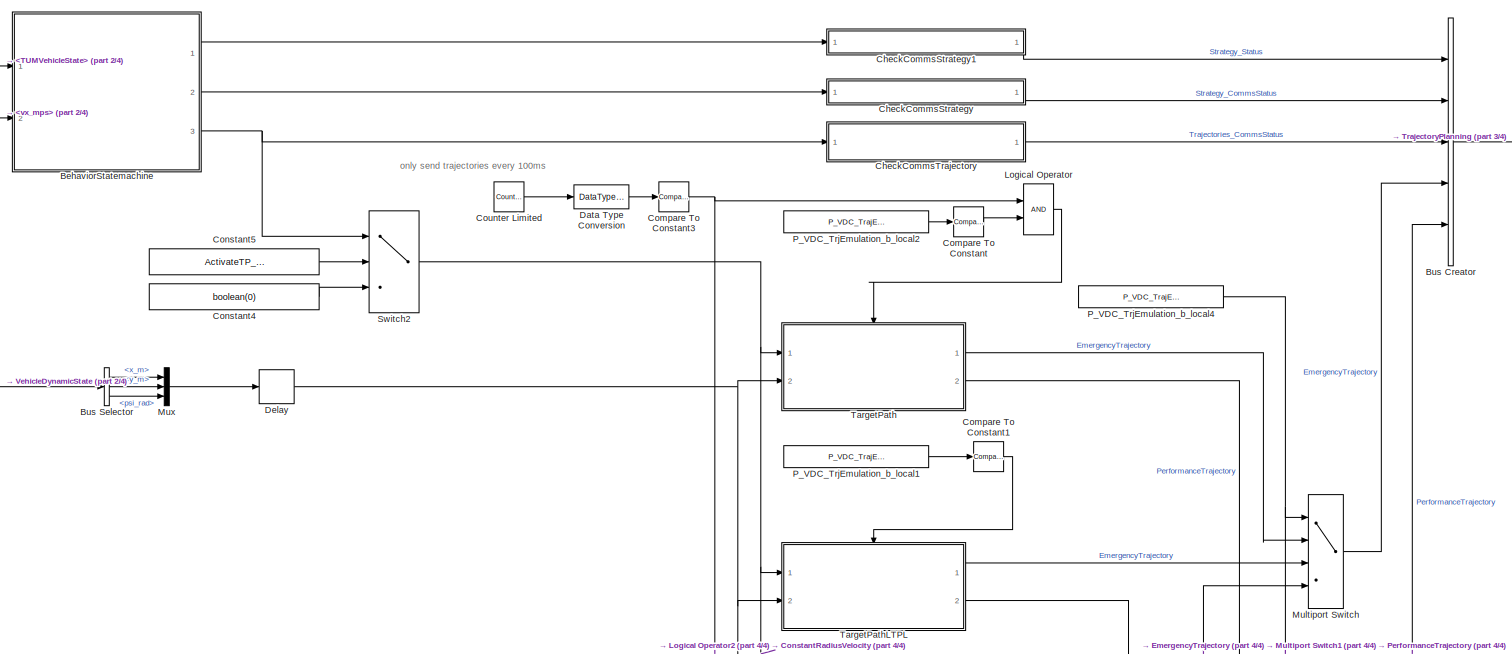
[diagram: root canvas - part 1/4, full width, middle band]
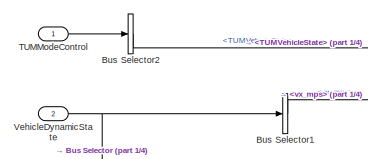
[diagram: root canvas - part 2/4, top left region]
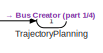
[diagram: root canvas - part 3/4, top right region]
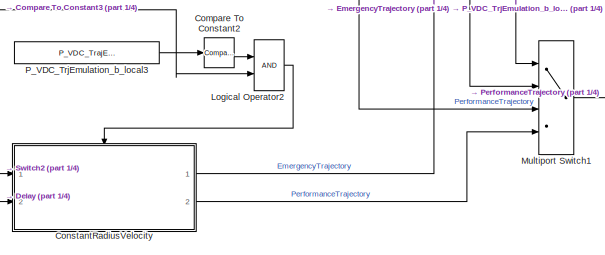
[diagram: root canvas - part 4/4, bottom right region]
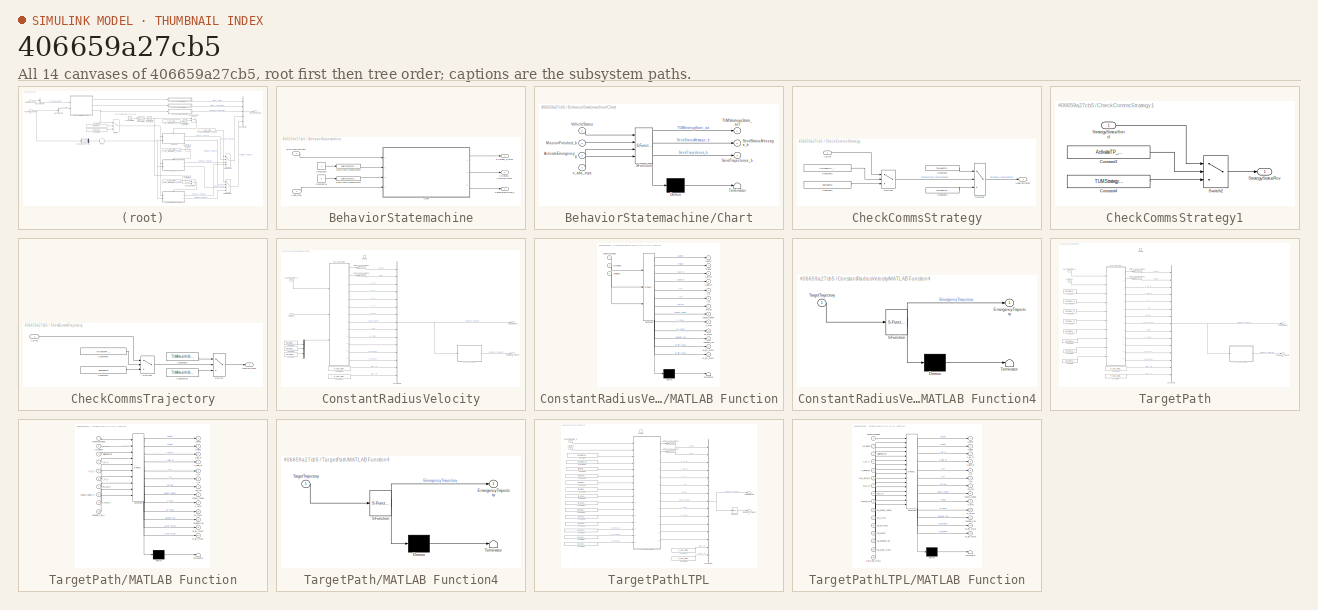
[diagram: thumbnail index - all 14 canvases of the model, root first then tree order]
MODEL slx_406659a27cb5
KIND model
BLOCK [SubSystem] BehaviorStatemachine
  Ports = [2, 3]
  RequestExecContextInheritance = off
  SystemSampleTime = tS
  TreatAsAtomicUnit = on
BLOCK [SubSystem] BehaviorStatemachine/Chart
  ErrorFcn = Stateflow.Translate.translate
  PermitHierarchicalResolution = ExplicitOnly
  Ports = [4, 3]
  RequestExecContextInheritance = off
  SFBlockType = Chart
  TreatAsAtomicUnit = on
BLOCK [Demux] BehaviorStatemachine/Chart/ Demux 
  Outputs = 1
  Ports = [1, 1]
BLOCK [S-Function] BehaviorStatemachine/Chart/ SFunction 
  EnableBusSupport = on
  FunctionName = sf_sfun
  Parameters = P_PX2_EnterIdle_mps
  PortCounts = [4 4]
  Ports = [4, 4]
  SFcnIsStateOwnerBlock = off
  SFunctionDeploymentMode = off
  Tag = Stateflow S-Function TrajectoryPlanningEmulation 3
BLOCK [Terminator] BehaviorStatemachine/Chart/ Terminator 
BLOCK [Inport] BehaviorStatemachine/Chart/ActivateEmergency_b
  IconDisplay = Port number
  Port = 3
BLOCK [Inport] BehaviorStatemachine/Chart/MissionFinished_b
  IconDisplay = Port number
  Port = 2
BLOCK [Outport] BehaviorStatemachine/Chart/SendStatusMessage_b
  IconDisplay = Port number
  Port = 2
BLOCK [Outport] BehaviorStatemachine/Chart/SendTrajectories_b
  IconDisplay = Port number
  Port = 3
BLOCK [Outport] BehaviorStatemachine/Chart/TUMStrategyState_act
  IconDisplay = Port number
BLOCK [Inport] BehaviorStatemachine/Chart/VehicleStatus
  IconDisplay = Port number
BLOCK [Inport] BehaviorStatemachine/Chart/v_abs_mps
  IconDisplay = Port number
  Port = 4
BLOCK [Constant] BehaviorStatemachine/Constant10
  Value = 0
BLOCK [Constant] BehaviorStatemachine/Constant9
  Value = 0
BLOCK [DataTypeConversion] BehaviorStatemachine/Data Type Conversion12
  OutDataTypeStr = boolean
  RndMeth = Floor
  SaturateOnIntegerOverflow = off
BLOCK [DataTypeConversion] BehaviorStatemachine/Data Type Conversion13
  OutDataTypeStr = boolean
  RndMeth = Floor
  SaturateOnIntegerOverflow = off
BLOCK [Outport] BehaviorStatemachine/SendTrajectories_b
  IconDisplay = Port number
  Port = 3
BLOCK [Outport] BehaviorStatemachine/Strategy_CommsStatus
  IconDisplay = Port number
  Port = 2
BLOCK [Outport] BehaviorStatemachine/Strategy_Status
  IconDisplay = Port number
BLOCK [Inport] BehaviorStatemachine/TUMVehicleState
  IconDisplay = Port number
  OutDataTypeStr = Enum: TUMVehicleState
BLOCK [Inport] BehaviorStatemachine/v_abs_mps
  IconDisplay = Port number
  Port = 2
BLOCK [BusCreator] Bus Creator
  DisplayOption = bar
  InheritFromInputs = on
  Inputs = 5
  Ports = [5, 1]
BLOCK [BusSelector] Bus Selector
  OutputAsBus = off
  OutputSignals = Pos.x_m,Pos.y_m,Pos.psi_rad
  Ports = [1, 3]
BLOCK [BusSelector] Bus Selector1
  OutputAsBus = off
  OutputSignals = vx_mps
  Ports = [1, 1]
BLOCK [BusSelector] Bus Selector2
  OutputAsBus = off
  OutputSignals = TUMVehicleState
  Ports = [1, 1]
BLOCK [SubSystem] CheckCommsStrategy
  Ports = [1, 1]
  RequestExecContextInheritance = off
BLOCK [Inport] CheckCommsStrategy/Active
  IconDisplay = Port number
BLOCK [Constant] CheckCommsStrategy/Constant1
  OutDataTypeStr = Enum: TUMHealthStatus
  Value = TUMHealthStatus.ERROR
BLOCK [Constant] CheckCommsStrategy/Constant2
  OutDataTypeStr = Enum: TUMHealthStatus
  Value = TUMHealthStatus.OK
BLOCK [Constant] CheckCommsStrategy/Constant3
  Value = ActivateTP_PX2
BLOCK [Constant] CheckCommsStrategy/Constant4
  Value = boolean(0)
BLOCK [Outport] CheckCommsStrategy/HealthStatus
  IconDisplay = Port number
BLOCK [Switch] CheckCommsStrategy/Switch1
  Criteria = u2 > Threshold
  InputSameDT = off
  SaturateOnIntegerOverflow = off
BLOCK [Switch] CheckCommsStrategy/Switch2
  Criteria = u2 > Threshold
  InputSameDT = off
  SaturateOnIntegerOverflow = off
BLOCK [SubSystem] CheckCommsStrategy1
  Ports = [1, 1]
  RequestExecContextInheritance = off
BLOCK [Constant] CheckCommsStrategy1/Constant3
  Value = ActivateTP_PX2
BLOCK [Constant] CheckCommsStrategy1/Constant4
  Value = TUMStrategyState.S_OFF
BLOCK [Outport] CheckCommsStrategy1/StrategyStatusRcv
  IconDisplay = Port number
BLOCK [Inport] CheckCommsStrategy1/StrategyStatusSend
  IconDisplay = Port number
BLOCK [Switch] CheckCommsStrategy1/Switch2
  Criteria = u2 > Threshold
  InputSameDT = off
  SaturateOnIntegerOverflow = off
BLOCK [SubSystem] CheckCommsTrajectory
  Ports = [1, 1]
  RequestExecContextInheritance = off
BLOCK [Inport] CheckCommsTrajectory/Active
  IconDisplay = Port number
BLOCK [Constant] CheckCommsTrajectory/Constant1
  Value = boolean(0)
BLOCK [Constant] CheckCommsTrajectory/Constant10
  OutDataTypeStr = Enum: TUMHealthStatus
  Value = TUMHealthStatus.ERROR
BLOCK [Constant] CheckCommsTrajectory/Constant2
  Value = ActivateTP_PX2
BLOCK [Constant] CheckCommsTrajectory/Constant3
  OutDataTypeStr = Enum: TUMHealthStatus
  Value = TUMHealthStatus.OK
BLOCK [Outport] CheckCommsTrajectory/HealthStatus
  IconDisplay = Port number
BLOCK [Switch] CheckCommsTrajectory/Switch
  Criteria = u2 > Threshold
  InputSameDT = off
  SaturateOnIntegerOverflow = off
BLOCK [Switch] CheckCommsTrajectory/Switch2
  Criteria = u2 > Threshold
  InputSameDT = off
  SaturateOnIntegerOverflow = off
BLOCK [Reference] Compare To Constant  REF=simulink/Logic and Bit
Operations/Compare
To Constant
  Ports = [1, 1]
  SourceBlock = simulink/Logic and Bit\nOperations/Compare\nTo Constant
  SourceProductBaseCode = SL
  SourceProductName = Simulink
  SourceType = Compare To Constant
BLOCK [Reference] Compare To Constant1  REF=simulink/Logic and Bit
Operations/Compare
To Constant
  Ports = [1, 1]
  SourceBlock = simulink/Logic and Bit\nOperations/Compare\nTo Constant
  SourceProductBaseCode = SL
  SourceProductName = Simulink
  SourceType = Compare To Constant
BLOCK [Reference] Compare To Constant2  REF=simulink/Logic and Bit
Operations/Compare
To Constant
  Ports = [1, 1]
  SourceBlock = simulink/Logic and Bit\nOperations/Compare\nTo Constant
  SourceProductBaseCode = SL
  SourceProductName = Simulink
  SourceType = Compare To Constant
BLOCK [Reference] Compare To Constant3  REF=simulink/Logic and Bit
Operations/Compare
To Constant
  Ports = [1, 1]
  SourceBlock = simulink/Logic and Bit\nOperations/Compare\nTo Constant
  SourceProductBaseCode = SL
  SourceProductName = Simulink
  SourceType = Compare To Constant
BLOCK [Constant] Constant4
  Value = boolean(0)
BLOCK [Constant] Constant5
  Value = ActivateTP_PX2
BLOCK [SubSystem] ConstantRadiusVelocity
  Ports = [2, 2, 1]
  RequestExecContextInheritance = off
  TreatAsAtomicUnit = on
BLOCK [Inport] ConstantRadiusVelocity/ActualPos
  IconDisplay = Port number
  Port = 2
  PortDimensions = 3
BLOCK [BusCreator] ConstantRadiusVelocity/Bus Creator2
  DisplayOption = bar
  InheritFromInputs = off
  Inputs = 15
  OutDataTypeStr = Bus: Trajectory
  Ports = [15, 1]
BLOCK [Constant] ConstantRadiusVelocity/Constant1
  Value = Raceline.x_m(1)
BLOCK [Constant] ConstantRadiusVelocity/Constant12
  Value = P_VDC_SafetyDistance_m*ones(50, 1)
  VectorParams1D = off
BLOCK [Constant] ConstantRadiusVelocity/Constant17
  Value = P_VDC_SafetyDistance_m*ones(50, 1)
  VectorParams1D = off
BLOCK [Constant] ConstantRadiusVelocity/Constant2
  Value = Raceline.y_m(1)
BLOCK [Constant] ConstantRadiusVelocity/Constant3
  Value = Raceline.psi_rad(1)
BLOCK [DataTypeConversion] ConstantRadiusVelocity/Data Type Conversion1
  OutDataTypeStr = uint32
  RndMeth = Floor
  SaturateOnIntegerOverflow = off
BLOCK [DataTypeConversion] ConstantRadiusVelocity/Data Type Conversion2
  OutDataTypeStr = uint32
  RndMeth = Floor
  SaturateOnIntegerOverflow = off
BLOCK [Outport] ConstantRadiusVelocity/EmergencyTrajectory
  IconDisplay = Port number
  OutDataTypeStr = Bus: Trajectory
BLOCK [EnablePort] ConstantRadiusVelocity/Enable
  Ports = []
BLOCK [SubSystem] ConstantRadiusVelocity/MATLAB Function
  ErrorFcn = Stateflow.Translate.translate
  PermitHierarchicalResolution = ExplicitOnly
  Ports = [3, 13]
  RequestExecContextInheritance = off
  SFBlockType = MATLAB Function
  TreatAsAtomicUnit = on
BLOCK [Demux] ConstantRadiusVelocity/MATLAB Function/ Demux 
  Outputs = 1
  Ports = [1, 1]
BLOCK [S-Function] ConstantRadiusVelocity/MATLAB Function/ SFunction 
  EnableBusSupport = on
  FunctionName = sf_sfun
  Parameters = P_VDC_AccLimits_ax_mps2,P_VDC_AccLimits_ay_mps2,P_VDC_AccLimits_v_mps
  PortCounts = [3 14]
  Ports = [3, 14]
  SFcnIsStateOwnerBlock = off
  SFunctionDeploymentMode = off
  Tag = Stateflow S-Function TrajectoryPlanningEmulation 4
BLOCK [Terminator] ConstantRadiusVelocity/MATLAB Function/ Terminator 
BLOCK [Inport] ConstantRadiusVelocity/MATLAB Function/ActualPos
  IconDisplay = Port number
  Port = 2
BLOCK [Inport] ConstantRadiusVelocity/MATLAB Function/InitialPos
  IconDisplay = Port number
  Port = 3
BLOCK [Outport] ConstantRadiusVelocity/MATLAB Function/LapCnt
  IconDisplay = Port number
BLOCK [Outport] ConstantRadiusVelocity/MATLAB Function/Psi_rad
  IconDisplay = Port number
  Port = 7
BLOCK [Outport] ConstantRadiusVelocity/MATLAB Function/TrajCnt
  IconDisplay = Port number
  Port = 2
BLOCK [Outport] ConstantRadiusVelocity/MATLAB Function/ax_lim_mps2
  IconDisplay = Port number
  Port = 12
BLOCK [Outport] ConstantRadiusVelocity/MATLAB Function/ax_mps2
  IconDisplay = Port number
  Port = 10
BLOCK [Outport] ConstantRadiusVelocity/MATLAB Function/ay_lim_mps2
  IconDisplay = Port number
  Port = 13
BLOCK [Outport] ConstantRadiusVelocity/MATLAB Function/banking_rad
  IconDisplay = Port number
  Port = 11
BLOCK [Outport] ConstantRadiusVelocity/MATLAB Function/kappa_radpm
  IconDisplay = Port number
  Port = 8
BLOCK [Outport] ConstantRadiusVelocity/MATLAB Function/s_glob_m
  IconDisplay = Port number
  Port = 4
BLOCK [Outport] ConstantRadiusVelocity/MATLAB Function/s_loc_m
  IconDisplay = Port number
  Port = 3
BLOCK [Inport] ConstantRadiusVelocity/MATLAB Function/sendMessages
  IconDisplay = Port number
BLOCK [Outport] ConstantRadiusVelocity/MATLAB Function/v_mps
  IconDisplay = Port number
  Port = 9
BLOCK [Outport] ConstantRadiusVelocity/MATLAB Function/x_m
  IconDisplay = Port number
  Port = 5
BLOCK [Outport] ConstantRadiusVelocity/MATLAB Function/y_m
  IconDisplay = Port number
  Port = 6
BLOCK [SubSystem] ConstantRadiusVelocity/MATLAB Function4
  ErrorFcn = Stateflow.Translate.translate
  PermitHierarchicalResolution = ExplicitOnly
  Ports = [1, 1]
  RequestExecContextInheritance = off
  SFBlockType = MATLAB Function
  TreatAsAtomicUnit = on
BLOCK [Demux] ConstantRadiusVelocity/MATLAB Function4/ Demux 
  Outputs = 1
  Ports = [1, 1]
BLOCK [S-Function] ConstantRadiusVelocity/MATLAB Function4/ SFunction 
  EnableBusSupport = on
  FunctionName = sf_sfun
  Parameters = P_VDC_AccLimits_ax_mps2,P_VDC_AccLimits_ay_mps2,P_VDC_AccLimits_v_mps,drag_coefficient,roh_air,vehiclemass_kg
  PortCounts = [1 2]
  Ports = [1, 2]
  SFcnIsStateOwnerBlock = off
  SFunctionDeploymentMode = off
  Tag = Stateflow S-Function TrajectoryPlanningEmulation 5
BLOCK [Terminator] ConstantRadiusVelocity/MATLAB Function4/ Terminator 
BLOCK [Outport] ConstantRadiusVelocity/MATLAB Function4/EmergencyTrajectory
  IconDisplay = Port number
BLOCK [Inport] ConstantRadiusVelocity/MATLAB Function4/TargetTrajectory
  IconDisplay = Port number
BLOCK [Mux] ConstantRadiusVelocity/Mux
  DisplayOption = bar
  Inputs = 3
  Ports = [3, 1]
BLOCK [Outport] ConstantRadiusVelocity/TargetTrajectory
  IconDisplay = Port number
  OutDataTypeStr = Bus: Trajectory
  Port = 2
BLOCK [Inport] ConstantRadiusVelocity/sendTrajectories_b
  IconDisplay = Port number
BLOCK [Reference] Counter Limited  REF=simulink/Sources/Counter
Limited
  Ports = [0, 1]
  SourceBlock = simulink/Sources/Counter\nLimited
  SourceProductBaseCode = SL
  SourceProductName = Simulink
  SourceType = Counter Limited
BLOCK [DataTypeConversion] Data Type Conversion
  RndMeth = Floor
  SaturateOnIntegerOverflow = off
BLOCK [Delay] Delay
  DelayLength = 1
  InputPortMap = u0
  Ports = [1, 1]
BLOCK [Logic] Logical Operator
  AllPortsSameDT = off
  OutDataTypeStr = boolean
  Ports = [2, 1]
BLOCK [Logic] Logical Operator2
  AllPortsSameDT = off
  OutDataTypeStr = boolean
  Ports = [2, 1]
BLOCK [MultiPortSwitch] Multiport Switch
  DataPortOrder = Zero-based contiguous
  InputSameDT = off
  Ports = [4, 1]
  SaturateOnIntegerOverflow = off
  zeroidx = on
BLOCK [MultiPortSwitch] Multiport Switch1
  DataPortOrder = Zero-based contiguous
  InputSameDT = off
  Ports = [4, 1]
  SaturateOnIntegerOverflow = off
  zeroidx = on
BLOCK [Mux] Mux
  DisplayOption = bar
  Inputs = 3
  Ports = [3, 1]
BLOCK [Constant] P_VDC_TrjEmulation_b_local1
  Value = P_VDC_TrajEmulation_mode
BLOCK [Constant] P_VDC_TrjEmulation_b_local2
  Value = P_VDC_TrajEmulation_mode
BLOCK [Constant] P_VDC_TrjEmulation_b_local3
  Value = P_VDC_TrajEmulation_mode
BLOCK [Constant] P_VDC_TrjEmulation_b_local4
  Value = P_VDC_TrajEmulation_mode
BLOCK [Switch] Switch2
  Criteria = u2 > Threshold
  InputSameDT = off
  SaturateOnIntegerOverflow = off
BLOCK [Inport] TUMModeControl
  IconDisplay = Port number
  OutDataTypeStr = Bus: TUMModeControl
  SampleTime = tS
BLOCK [SubSystem] TargetPath
  Ports = [2, 2, 1]
  RequestExecContextInheritance = off
  TreatAsAtomicUnit = on
BLOCK [Inport] TargetPath/ActualPos
  IconDisplay = Port number
  Port = 2
  PortDimensions = 3
BLOCK [BusCreator] TargetPath/Bus Creator2
  DisplayOption = bar
  InheritFromInputs = off
  Inputs = 15
  OutDataTypeStr = Bus: Trajectory
  Ports = [15, 1]
BLOCK [Constant] TargetPath/Constant1
  Value = Raceline.x_m
BLOCK [Constant] TargetPath/Constant11
  Value = Raceline.vx_mps
BLOCK [Constant] TargetPath/Constant12
  Value = P_VDC_SafetyDistance_m*ones(50, 1)
  VectorParams1D = off
BLOCK [Constant] TargetPath/Constant17
  Value = P_VDC_SafetyDistance_m*ones(50, 1)
  VectorParams1D = off
BLOCK [Constant] TargetPath/Constant19
  Value = Raceline.s_m
BLOCK [Constant] TargetPath/Constant2
  Value = Raceline.y_m
BLOCK [Constant] TargetPath/Constant3
  Value = Raceline.psi_rad
BLOCK [Constant] TargetPath/Constant4
  Value = Raceline.kappa_radpm
BLOCK [Constant] TargetPath/Constant6
  Value = Raceline.banking_rad
  VectorParams1D = off
BLOCK [Constant] TargetPath/Constant7
  Value = Raceline.ValidPointCnt
BLOCK [DataTypeConversion] TargetPath/Data Type Conversion1
  OutDataTypeStr = uint32
  RndMeth = Floor
  SaturateOnIntegerOverflow = off
BLOCK [DataTypeConversion] TargetPath/Data Type Conversion2
  OutDataTypeStr = uint32
  RndMeth = Floor
  SaturateOnIntegerOverflow = off
BLOCK [Outport] TargetPath/EmergencyTrajectory
  IconDisplay = Port number
  OutDataTypeStr = Bus: Trajectory
BLOCK [EnablePort] TargetPath/Enable
  Ports = []
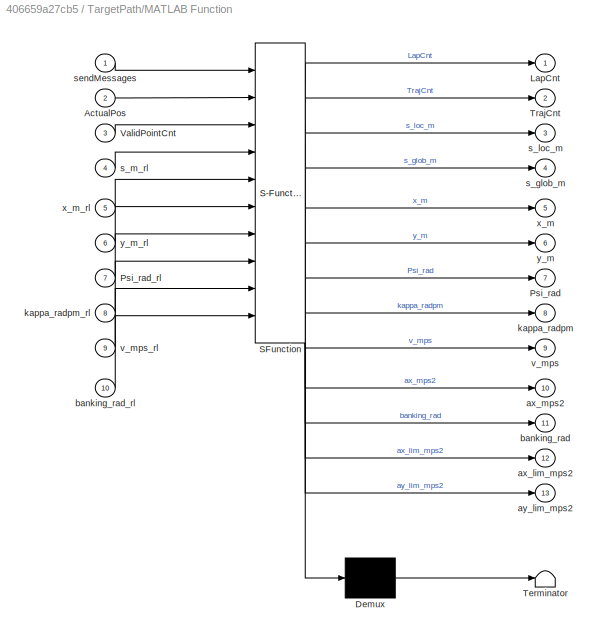
BLOCK [SubSystem] TargetPath/MATLAB Function
  ErrorFcn = Stateflow.Translate.translate
  PermitHierarchicalResolution = ExplicitOnly
  Ports = [10, 13]
  RequestExecContextInheritance = off
  SFBlockType = MATLAB Function
BLOCK [Demux] TargetPath/MATLAB Function/ Demux 
  Outputs = 1
  Ports = [1, 1]
BLOCK [S-Function] TargetPath/MATLAB Function/ SFunction 
  EnableBusSupport = on
  FunctionName = sf_sfun
  Parameters = P_TP_dist_foresight_perf_s,P_VDC_AccLimits_ax_mps2,P_VDC_AccLimits_ay_mps2,P_VDC_AccLimits_v_mps,P_VDC_VirtualScaleFactor
  PortCounts = [10 14]
  Ports = [10, 14]
  SFcnIsStateOwnerBlock = off
  SFunctionDeploymentMode = off
  Tag = Stateflow S-Function TrajectoryPlanningEmulation 2
BLOCK [Terminator] TargetPath/MATLAB Function/ Terminator 
BLOCK [Inport] TargetPath/MATLAB Function/ActualPos
  IconDisplay = Port number
  Port = 2
BLOCK [Outport] TargetPath/MATLAB Function/LapCnt
  IconDisplay = Port number
BLOCK [Outport] TargetPath/MATLAB Function/Psi_rad
  IconDisplay = Port number
  Port = 7
BLOCK [Inport] TargetPath/MATLAB Function/Psi_rad_rl
  IconDisplay = Port number
  Port = 7
BLOCK [Outport] TargetPath/MATLAB Function/TrajCnt
  IconDisplay = Port number
  Port = 2
BLOCK [Inport] TargetPath/MATLAB Function/ValidPointCnt
  IconDisplay = Port number
  Port = 3
BLOCK [Outport] TargetPath/MATLAB Function/ax_lim_mps2
  IconDisplay = Port number
  Port = 12
BLOCK [Outport] TargetPath/MATLAB Function/ax_mps2
  IconDisplay = Port number
  Port = 10
BLOCK [Outport] TargetPath/MATLAB Function/ay_lim_mps2
  IconDisplay = Port number
  Port = 13
BLOCK [Outport] TargetPath/MATLAB Function/banking_rad
  IconDisplay = Port number
  Port = 11
BLOCK [Inport] TargetPath/MATLAB Function/banking_rad_rl
  IconDisplay = Port number
  Port = 10
BLOCK [Outport] TargetPath/MATLAB Function/kappa_radpm
  IconDisplay = Port number
  Port = 8
BLOCK [Inport] TargetPath/MATLAB Function/kappa_radpm_rl
  IconDisplay = Port number
  Port = 8
BLOCK [Outport] TargetPath/MATLAB Function/s_glob_m
  IconDisplay = Port number
  Port = 4
BLOCK [Outport] TargetPath/MATLAB Function/s_loc_m
  IconDisplay = Port number
  Port = 3
BLOCK [Inport] TargetPath/MATLAB Function/s_m_rl
  IconDisplay = Port number
  Port = 4
BLOCK [Inport] TargetPath/MATLAB Function/sendMessages
  IconDisplay = Port number
BLOCK [Outport] TargetPath/MATLAB Function/v_mps
  IconDisplay = Port number
  Port = 9
BLOCK [Inport] TargetPath/MATLAB Function/v_mps_rl
  IconDisplay = Port number
  Port = 9
BLOCK [Outport] TargetPath/MATLAB Function/x_m
  IconDisplay = Port number
  Port = 5
BLOCK [Inport] TargetPath/MATLAB Function/x_m_rl
  IconDisplay = Port number
  Port = 5
BLOCK [Outport] TargetPath/MATLAB Function/y_m
  IconDisplay = Port number
  Port = 6
BLOCK [Inport] TargetPath/MATLAB Function/y_m_rl
  IconDisplay = Port number
  Port = 6
BLOCK [SubSystem] TargetPath/MATLAB Function4
  ErrorFcn = Stateflow.Translate.translate
  PermitHierarchicalResolution = ExplicitOnly
  Ports = [1, 1]
  RequestExecContextInheritance = off
  SFBlockType = MATLAB Function
BLOCK [Demux] TargetPath/MATLAB Function4/ Demux 
  Outputs = 1
  Ports = [1, 1]
BLOCK [S-Function] TargetPath/MATLAB Function4/ SFunction 
  EnableBusSupport = on
  FunctionName = sf_sfun
  Parameters = P_VDC_AccLimits_ax_mps2,P_VDC_AccLimits_ay_mps2,P_VDC_AccLimits_v_mps,drag_coefficient,roh_air,vehiclemass_kg
  PortCounts = [1 2]
  Ports = [1, 2]
  SFcnIsStateOwnerBlock = off
  SFunctionDeploymentMode = off
  Tag = Stateflow S-Function TrajectoryPlanningEmulation 7
BLOCK [Terminator] TargetPath/MATLAB Function4/ Terminator 
BLOCK [Outport] TargetPath/MATLAB Function4/EmergencyTrajectory
  IconDisplay = Port number
BLOCK [Inport] TargetPath/MATLAB Function4/TargetTrajectory
  IconDisplay = Port number
BLOCK [Outport] TargetPath/TargetTrajectory
  IconDisplay = Port number
  OutDataTypeStr = Bus: Trajectory
  Port = 2
BLOCK [Inport] TargetPath/sendTrajectories_b
  IconDisplay = Port number
BLOCK [SubSystem] TargetPathLTPL
  Ports = [2, 2, 1]
  RequestExecContextInheritance = off
  TreatAsAtomicUnit = on
BLOCK [Inport] TargetPathLTPL/ActualPos
  IconDisplay = Port number
  Port = 2
  PortDimensions = 3
BLOCK [BusCreator] TargetPathLTPL/Bus Creator2
  DisplayOption = bar
  InheritFromInputs = off
  Inputs = 15
  OutDataTypeStr = Bus: Trajectory
  Ports = [15, 1]
BLOCK [Constant] TargetPathLTPL/Constant1
  Value = ltpl_log.debug_slow_tartraj_LapCnt
BLOCK [Constant] TargetPathLTPL/Constant10
  Value = ltpl_log.debug_slow_tartraj_psi_rad
BLOCK [Constant] TargetPathLTPL/Constant11
  Value = P_VDC_SafetyDistance_m*ones(50, 1)
  VectorParams1D = off
BLOCK [Constant] TargetPathLTPL/Constant12
  Value = ltpl_log.debug_slow_tartraj_kappa_radpm
BLOCK [Constant] TargetPathLTPL/Constant13
  Value = ltpl_log.debug_slow_tartraj_v_mps
BLOCK [Constant] TargetPathLTPL/Constant14
  Value = ltpl_log.debug_slow_tartraj_s_loc_m
BLOCK [Constant] TargetPathLTPL/Constant15
  Value = P_VDC_SafetyDistance_m*ones(50, 1)
  VectorParams1D = off
BLOCK [Constant] TargetPathLTPL/Constant19
  Value = Raceline.s_m
BLOCK [Constant] TargetPathLTPL/Constant2
  Value = ltpl_log.debug_slow_tartraj_ax_lim_mps2
BLOCK [Constant] TargetPathLTPL/Constant3
  Value = ltpl_log.debug_slow_tartraj_ay_lim_mps2
BLOCK [Constant] TargetPathLTPL/Constant4
  Value = ltpl_log.debug_slow_tartraj_banking_rad
BLOCK [Constant] TargetPathLTPL/Constant5
  Value = ltpl_log.s_global_m
BLOCK [Constant] TargetPathLTPL/Constant6
  Value = ltpl_log.debug_slow_tartraj_ax_mps2
BLOCK [Constant] TargetPathLTPL/Constant7
  Value = Raceline.ValidPointCnt
BLOCK [Constant] TargetPathLTPL/Constant8
  Value = ltpl_log.debug_slow_tartraj_x_m
BLOCK [Constant] TargetPathLTPL/Constant9
  Value = ltpl_log.debug_slow_tartraj_y_m
BLOCK [DataTypeConversion] TargetPathLTPL/Data Type Conversion1
  OutDataTypeStr = uint32
  RndMeth = Floor
  SaturateOnIntegerOverflow = off
BLOCK [DataTypeConversion] TargetPathLTPL/Data Type Conversion2
  OutDataTypeStr = uint32
  RndMeth = Floor
  SaturateOnIntegerOverflow = off
BLOCK [Outport] TargetPathLTPL/EmergencyTrajectory
  IconDisplay = Port number
  OutDataTypeStr = Bus: Trajectory
BLOCK [EnablePort] TargetPathLTPL/Enable
  Ports = []
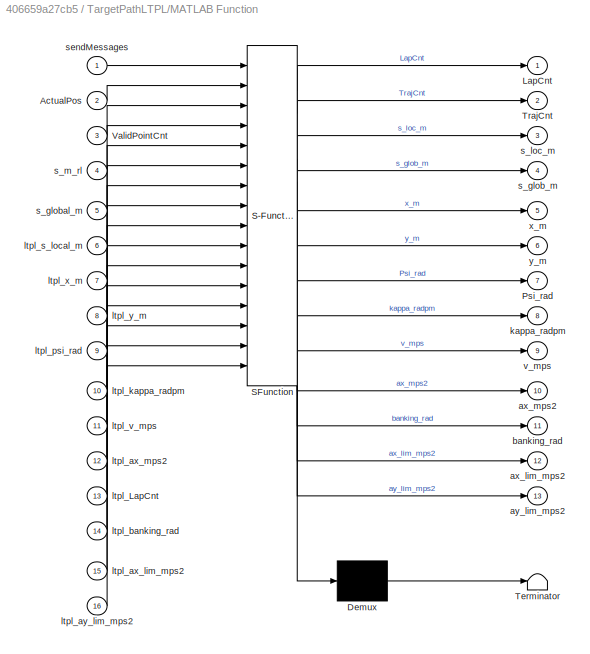
BLOCK [SubSystem] TargetPathLTPL/MATLAB Function
  ErrorFcn = Stateflow.Translate.translate
  PermitHierarchicalResolution = ExplicitOnly
  Ports = [16, 13]
  RequestExecContextInheritance = off
  SFBlockType = MATLAB Function
  TreatAsAtomicUnit = on
BLOCK [Demux] TargetPathLTPL/MATLAB Function/ Demux 
  Outputs = 1
  Ports = [1, 1]
BLOCK [S-Function] TargetPathLTPL/MATLAB Function/ SFunction 
  EnableBusSupport = on
  FunctionName = sf_sfun
  PortCounts = [16 14]
  Ports = [16, 14]
  SFcnIsStateOwnerBlock = off
  SFunctionDeploymentMode = off
  Tag = Stateflow S-Function TrajectoryPlanningEmulation 1
BLOCK [Terminator] TargetPathLTPL/MATLAB Function/ Terminator 
BLOCK [Inport] TargetPathLTPL/MATLAB Function/ActualPos
  IconDisplay = Port number
  Port = 2
BLOCK [Outport] TargetPathLTPL/MATLAB Function/LapCnt
  IconDisplay = Port number
BLOCK [Outport] TargetPathLTPL/MATLAB Function/Psi_rad
  IconDisplay = Port number
  Port = 7
BLOCK [Outport] TargetPathLTPL/MATLAB Function/TrajCnt
  IconDisplay = Port number
  Port = 2
BLOCK [Inport] TargetPathLTPL/MATLAB Function/ValidPointCnt
  IconDisplay = Port number
  Port = 3
BLOCK [Outport] TargetPathLTPL/MATLAB Function/ax_lim_mps2
  IconDisplay = Port number
  Port = 12
BLOCK [Outport] TargetPathLTPL/MATLAB Function/ax_mps2
  IconDisplay = Port number
  Port = 10
BLOCK [Outport] TargetPathLTPL/MATLAB Function/ay_lim_mps2
  IconDisplay = Port number
  Port = 13
BLOCK [Outport] TargetPathLTPL/MATLAB Function/banking_rad
  IconDisplay = Port number
  Port = 11
BLOCK [Outport] TargetPathLTPL/MATLAB Function/kappa_radpm
  IconDisplay = Port number
  Port = 8
BLOCK [Inport] TargetPathLTPL/MATLAB Function/ltpl_LapCnt
  IconDisplay = Port number
  Port = 13
BLOCK [Inport] TargetPathLTPL/MATLAB Function/ltpl_ax_lim_mps2
  IconDisplay = Port number
  Port = 15
BLOCK [Inport] TargetPathLTPL/MATLAB Function/ltpl_ax_mps2
  IconDisplay = Port number
  Port = 12
BLOCK [Inport] TargetPathLTPL/MATLAB Function/ltpl_ay_lim_mps2
  IconDisplay = Port number
  Port = 16
BLOCK [Inport] TargetPathLTPL/MATLAB Function/ltpl_banking_rad
  IconDisplay = Port number
  Port = 14
BLOCK [Inport] TargetPathLTPL/MATLAB Function/ltpl_kappa_radpm
  IconDisplay = Port number
  Port = 10
BLOCK [Inport] TargetPathLTPL/MATLAB Function/ltpl_psi_rad
  IconDisplay = Port number
  Port = 9
BLOCK [Inport] TargetPathLTPL/MATLAB Function/ltpl_s_local_m
  IconDisplay = Port number
  Port = 6
BLOCK [Inport] TargetPathLTPL/MATLAB Function/ltpl_v_mps
  IconDisplay = Port number
  Port = 11
BLOCK [Inport] TargetPathLTPL/MATLAB Function/ltpl_x_m
  IconDisplay = Port number
  Port = 7
BLOCK [Inport] TargetPathLTPL/MATLAB Function/ltpl_y_m
  IconDisplay = Port number
  Port = 8
BLOCK [Outport] TargetPathLTPL/MATLAB Function/s_glob_m
  IconDisplay = Port number
  Port = 4
BLOCK [Inport] TargetPathLTPL/MATLAB Function/s_global_m
  IconDisplay = Port number
  Port = 5
BLOCK [Outport] TargetPathLTPL/MATLAB Function/s_loc_m
  IconDisplay = Port number
  Port = 3
BLOCK [Inport] TargetPathLTPL/MATLAB Function/s_m_rl
  IconDisplay = Port number
  Port = 4
BLOCK [Inport] TargetPathLTPL/MATLAB Function/sendMessages
  IconDisplay = Port number
BLOCK [Outport] TargetPathLTPL/MATLAB Function/v_mps
  IconDisplay = Port number
  Port = 9
BLOCK [Outport] TargetPathLTPL/MATLAB Function/x_m
  IconDisplay = Port number
  Port = 5
BLOCK [Outport] TargetPathLTPL/MATLAB Function/y_m
  IconDisplay = Port number
  Port = 6
BLOCK [SignalConversion] TargetPathLTPL/Signal Copy
  ConversionOutput = Nonvirtual bus
  OverrideOpt = off
BLOCK [Outport] TargetPathLTPL/TargetTrajectory
  IconDisplay = Port number
  OutDataTypeStr = Bus: Trajectory
  Port = 2
BLOCK [Inport] TargetPathLTPL/sendTrajectories_b
  IconDisplay = Port number
BLOCK [Outport] TrajectoryPlanning
  BusOutputAsStruct = on
  IconDisplay = Port number
  OutDataTypeStr = Bus: TrajectoryPlanning
  SampleTime = tS
BLOCK [Inport] VehicleDynamicState
  IconDisplay = Port number
  OutDataTypeStr = Bus: VehicleDynamicState
  Port = 2
  SampleTime = tS
ANNOTATION (root): only send trajectories every 100ms
LINE BehaviorStatemachine/Chart:1 -> BehaviorStatemachine/Strategy_Status:1
LINE BehaviorStatemachine/Chart:2 -> BehaviorStatemachine/Strategy_CommsStatus:1
LINE BehaviorStatemachine/Chart:3 -> BehaviorStatemachine/SendTrajectories_b:1
LINE BehaviorStatemachine/Constant10:1 -> BehaviorStatemachine/Data Type Conversion13:1
LINE BehaviorStatemachine/Constant9:1 -> BehaviorStatemachine/Data Type Conversion12:1
LINE BehaviorStatemachine/Data Type Conversion12:1 -> BehaviorStatemachine/Chart:2
LINE BehaviorStatemachine/Data Type Conversion13:1 -> BehaviorStatemachine/Chart:3
LINE BehaviorStatemachine/TUMVehicleState:1 -> BehaviorStatemachine/Chart:1
LINE BehaviorStatemachine/v_abs_mps:1 -> BehaviorStatemachine/Chart:4
LINE BehaviorStatemachine:1 -> CheckCommsStrategy1:1
LINE BehaviorStatemachine:2 -> CheckCommsStrategy:1
NET BehaviorStatemachine:3 -> CheckCommsTrajectory:1, Switch2:1
LINE Bus Creator:1 -> TrajectoryPlanning:1
LINE Bus Selector1:1 -> BehaviorStatemachine:2
LINE Bus Selector2:1 -> BehaviorStatemachine:1
LINE Bus Selector:1 -> Mux:1
LINE Bus Selector:2 -> Mux:2
LINE Bus Selector:3 -> Mux:3
LINE CheckCommsStrategy/Active:1 -> CheckCommsStrategy/Switch2:1
LINE CheckCommsStrategy/Constant1:1 -> CheckCommsStrategy/Switch1:3
LINE CheckCommsStrategy/Constant2:1 -> CheckCommsStrategy/Switch1:1
LINE CheckCommsStrategy/Constant3:1 -> CheckCommsStrategy/Switch2:2
LINE CheckCommsStrategy/Constant4:1 -> CheckCommsStrategy/Switch2:3
LINE CheckCommsStrategy/Switch1:1 -> CheckCommsStrategy/HealthStatus:1
LINE CheckCommsStrategy/Switch2:1 -> CheckCommsStrategy/Switch1:2
LINE CheckCommsStrategy1/Constant3:1 -> CheckCommsStrategy1/Switch2:2
LINE CheckCommsStrategy1/Constant4:1 -> CheckCommsStrategy1/Switch2:3
LINE CheckCommsStrategy1/StrategyStatusSend:1 -> CheckCommsStrategy1/Switch2:1
LINE CheckCommsStrategy1/Switch2:1 -> CheckCommsStrategy1/StrategyStatusRcv:1
LINE CheckCommsStrategy1:1 -> Bus Creator:1
LINE CheckCommsStrategy:1 -> Bus Creator:2
LINE CheckCommsTrajectory/Active:1 -> CheckCommsTrajectory/Switch2:1
LINE CheckCommsTrajectory/Constant10:1 -> CheckCommsTrajectory/Switch:3
LINE CheckCommsTrajectory/Constant1:1 -> CheckCommsTrajectory/Switch2:3
LINE CheckCommsTrajectory/Constant2:1 -> CheckCommsTrajectory/Switch2:2
LINE CheckCommsTrajectory/Constant3:1 -> CheckCommsTrajectory/Switch:1
LINE CheckCommsTrajectory/Switch2:1 -> CheckCommsTrajectory/Switch:2
LINE CheckCommsTrajectory/Switch:1 -> CheckCommsTrajectory/HealthStatus:1
LINE CheckCommsTrajectory:1 -> Bus Creator:3
LINE Compare To Constant1:1 -> TargetPathLTPL:enable
LINE Compare To Constant2:1 -> Logical Operator2:1
NET Compare To Constant3:1 -> Logical Operator2:2, Logical Operator:1
LINE Compare To Constant:1 -> Logical Operator:2
LINE Constant4:1 -> Switch2:3
LINE Constant5:1 -> Switch2:2
LINE ConstantRadiusVelocity/ActualPos:1 -> ConstantRadiusVelocity/MATLAB Function:2
NET ConstantRadiusVelocity/Bus Creator2:1 -> ConstantRadiusVelocity/MATLAB Function4:1, ConstantRadiusVelocity/TargetTrajectory:1
LINE ConstantRadiusVelocity/Constant12:1 -> ConstantRadiusVelocity/Bus Creator2:14
LINE ConstantRadiusVelocity/Constant17:1 -> ConstantRadiusVelocity/Bus Creator2:15
LINE ConstantRadiusVelocity/Constant1:1 -> ConstantRadiusVelocity/Mux:1
LINE ConstantRadiusVelocity/Constant2:1 -> ConstantRadiusVelocity/Mux:2
LINE ConstantRadiusVelocity/Constant3:1 -> ConstantRadiusVelocity/Mux:3
LINE ConstantRadiusVelocity/Data Type Conversion1:1 -> ConstantRadiusVelocity/Bus Creator2:1
LINE ConstantRadiusVelocity/Data Type Conversion2:1 -> ConstantRadiusVelocity/Bus Creator2:2
LINE ConstantRadiusVelocity/MATLAB Function4:1 -> ConstantRadiusVelocity/EmergencyTrajectory:1
LINE ConstantRadiusVelocity/MATLAB Function:1 -> ConstantRadiusVelocity/Data Type Conversion1:1
LINE ConstantRadiusVelocity/MATLAB Function:10 -> ConstantRadiusVelocity/Bus Creator2:10
LINE ConstantRadiusVelocity/MATLAB Function:11 -> ConstantRadiusVelocity/Bus Creator2:11
LINE ConstantRadiusVelocity/MATLAB Function:12 -> ConstantRadiusVelocity/Bus Creator2:12
LINE ConstantRadiusVelocity/MATLAB Function:13 -> ConstantRadiusVelocity/Bus Creator2:13
LINE ConstantRadiusVelocity/MATLAB Function:2 -> ConstantRadiusVelocity/Data Type Conversion2:1
LINE ConstantRadiusVelocity/MATLAB Function:3 -> ConstantRadiusVelocity/Bus Creator2:3
LINE ConstantRadiusVelocity/MATLAB Function:4 -> ConstantRadiusVelocity/Bus Creator2:4
LINE ConstantRadiusVelocity/MATLAB Function:5 -> ConstantRadiusVelocity/Bus Creator2:5
LINE ConstantRadiusVelocity/MATLAB Function:6 -> ConstantRadiusVelocity/Bus Creator2:6
LINE ConstantRadiusVelocity/MATLAB Function:7 -> ConstantRadiusVelocity/Bus Creator2:7
LINE ConstantRadiusVelocity/MATLAB Function:8 -> ConstantRadiusVelocity/Bus Creator2:8
LINE ConstantRadiusVelocity/MATLAB Function:9 -> ConstantRadiusVelocity/Bus Creator2:9
LINE ConstantRadiusVelocity/Mux:1 -> ConstantRadiusVelocity/MATLAB Function:3
LINE ConstantRadiusVelocity/sendTrajectories_b:1 -> ConstantRadiusVelocity/MATLAB Function:1
LINE ConstantRadiusVelocity:1 -> Multiport Switch:4
LINE ConstantRadiusVelocity:2 -> Multiport Switch1:4
LINE Counter Limited:1 -> Data Type Conversion:1
LINE Data Type Conversion:1 -> Compare To Constant3:1
NET Delay:1 -> ConstantRadiusVelocity:2, TargetPath:2, TargetPathLTPL:2
LINE Logical Operator2:1 -> ConstantRadiusVelocity:enable
LINE Logical Operator:1 -> TargetPath:enable
LINE Multiport Switch1:1 -> Bus Creator:5
LINE Multiport Switch:1 -> Bus Creator:4
LINE Mux:1 -> Delay:1
LINE P_VDC_TrjEmulation_b_local1:1 -> Compare To Constant1:1
LINE P_VDC_TrjEmulation_b_local2:1 -> Compare To Constant:1
LINE P_VDC_TrjEmulation_b_local3:1 -> Compare To Constant2:1
NET P_VDC_TrjEmulation_b_local4:1 -> Multiport Switch1:1, Multiport Switch:1
NET Switch2:1 -> ConstantRadiusVelocity:1, TargetPath:1, TargetPathLTPL:1
LINE TUMModeControl:1 -> Bus Selector2:1
LINE TargetPath/ActualPos:1 -> TargetPath/MATLAB Function:2
NET TargetPath/Bus Creator2:1 -> TargetPath/MATLAB Function4:1, TargetPath/TargetTrajectory:1
LINE TargetPath/Constant11:1 -> TargetPath/MATLAB Function:9
LINE TargetPath/Constant12:1 -> TargetPath/Bus Creator2:14
LINE TargetPath/Constant17:1 -> TargetPath/Bus Creator2:15
LINE TargetPath/Constant19:1 -> TargetPath/MATLAB Function:4
LINE TargetPath/Constant1:1 -> TargetPath/MATLAB Function:5
LINE TargetPath/Constant2:1 -> TargetPath/MATLAB Function:6
LINE TargetPath/Constant3:1 -> TargetPath/MATLAB Function:7
LINE TargetPath/Constant4:1 -> TargetPath/MATLAB Function:8
LINE TargetPath/Constant6:1 -> TargetPath/MATLAB Function:10
LINE TargetPath/Constant7:1 -> TargetPath/MATLAB Function:3
LINE TargetPath/Data Type Conversion1:1 -> TargetPath/Bus Creator2:1
LINE TargetPath/Data Type Conversion2:1 -> TargetPath/Bus Creator2:2
LINE TargetPath/MATLAB Function4:1 -> TargetPath/EmergencyTrajectory:1
LINE TargetPath/MATLAB Function:1 -> TargetPath/Data Type Conversion1:1
LINE TargetPath/MATLAB Function:10 -> TargetPath/Bus Creator2:10
LINE TargetPath/MATLAB Function:11 -> TargetPath/Bus Creator2:11
LINE TargetPath/MATLAB Function:12 -> TargetPath/Bus Creator2:12
LINE TargetPath/MATLAB Function:13 -> TargetPath/Bus Creator2:13
LINE TargetPath/MATLAB Function:2 -> TargetPath/Data Type Conversion2:1
LINE TargetPath/MATLAB Function:3 -> TargetPath/Bus Creator2:3
LINE TargetPath/MATLAB Function:4 -> TargetPath/Bus Creator2:4
LINE TargetPath/MATLAB Function:5 -> TargetPath/Bus Creator2:5
LINE TargetPath/MATLAB Function:6 -> TargetPath/Bus Creator2:6
LINE TargetPath/MATLAB Function:7 -> TargetPath/Bus Creator2:7
LINE TargetPath/MATLAB Function:8 -> TargetPath/Bus Creator2:8
LINE TargetPath/MATLAB Function:9 -> TargetPath/Bus Creator2:9
LINE TargetPath/sendTrajectories_b:1 -> TargetPath/MATLAB Function:1
LINE TargetPath:1 -> Multiport Switch:2
LINE TargetPath:2 -> Multiport Switch1:2
LINE TargetPathLTPL/ActualPos:1 -> TargetPathLTPL/MATLAB Function:2
NET TargetPathLTPL/Bus Creator2:1 -> TargetPathLTPL/Signal Copy:1, TargetPathLTPL/TargetTrajectory:1
LINE TargetPathLTPL/Constant10:1 -> TargetPathLTPL/MATLAB Function:9
LINE TargetPathLTPL/Constant11:1 -> TargetPathLTPL/Bus Creator2:14
LINE TargetPathLTPL/Constant12:1 -> TargetPathLTPL/MATLAB Function:10
LINE TargetPathLTPL/Constant13:1 -> TargetPathLTPL/MATLAB Function:11
LINE TargetPathLTPL/Constant14:1 -> TargetPathLTPL/MATLAB Function:6
LINE TargetPathLTPL/Constant15:1 -> TargetPathLTPL/Bus Creator2:15
LINE TargetPathLTPL/Constant19:1 -> TargetPathLTPL/MATLAB Function:4
LINE TargetPathLTPL/Constant1:1 -> TargetPathLTPL/MATLAB Function:13
LINE TargetPathLTPL/Constant2:1 -> TargetPathLTPL/MATLAB Function:15
LINE TargetPathLTPL/Constant3:1 -> TargetPathLTPL/MATLAB Function:16
LINE TargetPathLTPL/Constant4:1 -> TargetPathLTPL/MATLAB Function:14
LINE TargetPathLTPL/Constant5:1 -> TargetPathLTPL/MATLAB Function:5
LINE TargetPathLTPL/Constant6:1 -> TargetPathLTPL/MATLAB Function:12
LINE TargetPathLTPL/Constant7:1 -> TargetPathLTPL/MATLAB Function:3
LINE TargetPathLTPL/Constant8:1 -> TargetPathLTPL/MATLAB Function:7
LINE TargetPathLTPL/Constant9:1 -> TargetPathLTPL/MATLAB Function:8
LINE TargetPathLTPL/Data Type Conversion1:1 -> TargetPathLTPL/Bus Creator2:1
LINE TargetPathLTPL/Data Type Conversion2:1 -> TargetPathLTPL/Bus Creator2:2
LINE TargetPathLTPL/MATLAB Function:1 -> TargetPathLTPL/Data Type Conversion1:1
LINE TargetPathLTPL/MATLAB Function:10 -> TargetPathLTPL/Bus Creator2:10
LINE TargetPathLTPL/MATLAB Function:11 -> TargetPathLTPL/Bus Creator2:11
LINE TargetPathLTPL/MATLAB Function:12 -> TargetPathLTPL/Bus Creator2:12
LINE TargetPathLTPL/MATLAB Function:13 -> TargetPathLTPL/Bus Creator2:13
LINE TargetPathLTPL/MATLAB Function:2 -> TargetPathLTPL/Data Type Conversion2:1
LINE TargetPathLTPL/MATLAB Function:3 -> TargetPathLTPL/Bus Creator2:3
LINE TargetPathLTPL/MATLAB Function:4 -> TargetPathLTPL/Bus Creator2:4
LINE TargetPathLTPL/MATLAB Function:5 -> TargetPathLTPL/Bus Creator2:5
LINE TargetPathLTPL/MATLAB Function:6 -> TargetPathLTPL/Bus Creator2:6
LINE TargetPathLTPL/MATLAB Function:7 -> TargetPathLTPL/Bus Creator2:7
LINE TargetPathLTPL/MATLAB Function:8 -> TargetPathLTPL/Bus Creator2:8
LINE TargetPathLTPL/MATLAB Function:9 -> TargetPathLTPL/Bus Creator2:9
LINE TargetPathLTPL/Signal Copy:1 -> TargetPathLTPL/EmergencyTrajectory:1
LINE TargetPathLTPL/sendTrajectories_b:1 -> TargetPathLTPL/MATLAB Function:1
LINE TargetPathLTPL:1 -> Multiport Switch:3
LINE TargetPathLTPL:2 -> Multiport Switch1:3
NET VehicleDynamicState:1 -> Bus Selector1:1, Bus Selector:1
note: NET lines group one-source signal fan-out (src -> all destinations, sorted); 1:1 wires keep LINE
CHART TargetPathLTPL/MATLAB Function states=1 transitions=1
  STATE_LABEL 'eML_blk_kernel()'
  STATE_LABEL 'SCRIPT:\nfunction [LapCnt, TrajCnt, s_loc_m, s_glob_m, x_m, y_m, Psi_rad, kappa_radpm, v_mps, ax_mps2, banking_rad, ax_lim_mps2, ay_lim_mps2] =...\n  fcn(sendMessages, ActualPos, ValidPointCnt, s_m_rl, s_global_m, ltpl_s_local_m, ltpl_x_m, ltpl_y_m, ltpl_psi_rad, ltpl_kappa_radpm, ltpl_v_mps, ltpl_ax_mps2, ltpl_LapCnt, ltpl_banking_rad, ltpl_ax_lim_mps2, ltpl_ay_lim_mps2)\n% function wrapper for cutL...<+407ch>'
CHART TargetPath/MATLAB Function states=1 transitions=1
  STATE_LABEL 'eML_blk_kernel()'
  STATE_LABEL 'SCRIPT:\nfunction [LapCnt, TrajCnt, s_loc_m, s_glob_m, x_m, y_m, Psi_rad, kappa_radpm, v_mps, ax_mps2, banking_rad, ax_lim_mps2, ay_lim_mps2] =...\n  fcn(sendMessages, ActualPos, ValidPointCnt, s_m_rl, x_m_rl, y_m_rl, Psi_rad_rl, kappa_radpm_rl, v_mps_rl, banking_rad_rl, ...\n  P_TP_dist_foresight_perf_s, P_VDC_AccLimits_v_mps, P_VDC_AccLimits_ax_mps2, P_VDC_AccLimits_ay_mps2, P_VDC_VirtualScaleFacto...<+475ch>'
CHART BehaviorStatemachine/Chart states=8 transitions=7
  STATE_LABEL 'StartupStrategy\nentry: TUMStrategyState_act = ...\n   TUMStrategyState.S_STARTUP;\n'
  STATE_LABEL 'SendStatusMessage\nentry: SendStatusMessage_b = true;\nexit: SendStatusMessage_b = false;'
  STATE_LABEL 'Idle\nentry: TUMStrategyState_act = ...\n   TUMStrategyState.S_STANDSTILL;'
  STATE_LABEL 'Idle1\nentry: TUMStrategyState_act = ...\n   TUMStrategyState.S_STANDSTILL_TRAJSEND;\nentry:  SendTrajectories_b = true;'
  STATE_LABEL 'DRIVING\n'
  STATE_LABEL 'Driving\nentry: TUMStrategyState_act = ...\n     TUMStrategyState.S_DRIVING_RACE;\n'
  STATE_LABEL 'Brake2Stop\nentry: TUMStrategyState_act = ...\n   TUMStrategyState.S_DRIVING_BRAKE2STOP;\n'
  STATE_LABEL 'Emergency\nentry: TUMStrategyState_act =...\n   TUMStrategyState.S_DRIVING_EMERGENCY;'
  STATE_LABEL '[MissionFinished_b]'
  STATE_LABEL '[ActivateEmergency_b]'
  STATE_LABEL '[int16(VehicleStatus)  >= 22]'
  STATE_LABEL '[VehicleStatus == TUMVehicleState.DRIVING]'
  STATE_LABEL 'Idle\nentry: TUMStrategyState_act = ...\n   TUMStrategyState.S_STANDSTILL;'
  STATE_LABEL 'Idle1\nentry: TUMStrategyState_act = ...\n   TUMStrategyState.S_STANDSTILL_TRAJSEND;\nentry:  SendTrajectories_b = true;'
  STATE_LABEL 'DRIVING\n'
  STATE_LABEL 'Driving\nentry: TUMStrategyState_act = ...\n     TUMStrategyState.S_DRIVING_RACE;\n'
  STATE_LABEL 'Brake2Stop\nentry: TUMStrategyState_act = ...\n   TUMStrategyState.S_DRIVING_BRAKE2STOP;\n'
  STATE_LABEL 'Emergency\nentry: TUMStrategyState_act =...\n   TUMStrategyState.S_DRIVING_EMERGENCY;'
  STATE_LABEL '[MissionFinished_b]'
  STATE_LABEL '[ActivateEmergency_b]'
  STATE_LABEL 'Driving\nentry: TUMStrategyState_act = ...\n     TUMStrategyState.S_DRIVING_RACE;\n'
  STATE_LABEL 'Brake2Stop\nentry: TUMStrategyState_act = ...\n   TUMStrategyState.S_DRIVING_BRAKE2STOP;\n'
  STATE_LABEL 'Emergency\nentry: TUMStrategyState_act =...\n   TUMStrategyState.S_DRIVING_EMERGENCY;'
CHART ConstantRadiusVelocity/MATLAB Function states=1 transitions=1
  STATE_LABEL 'eML_blk_kernel()'
  STATE_LABEL 'SCRIPT:\nfunction [LapCnt, TrajCnt, s_loc_m, s_glob_m, x_m, y_m, Psi_rad, kappa_radpm, v_mps, ax_mps2, banking_rad, ax_lim_mps2, ay_lim_mps2] =...\n  fcn(sendMessages, ActualPos, InitialPos, P_VDC_AccLimits_v_mps, P_VDC_AccLimits_ax_mps2, P_VDC_AccLimits_ay_mps2)\n% function wrapper for cutLocalTrajectoryFromRaceline\n[LapCnt, TrajCnt, s_loc_m, s_glob_m, x_m, y_m, Psi_rad, kappa_radpm, v_mps, ax_mps2,...<+176ch>'
CHART ConstantRadiusVelocity/MATLAB Function4 states=1 transitions=1
  STATE_LABEL 'eML_blk_kernel()'
  STATE_LABEL 'SCRIPT:\nfunction EmergencyTrajectory = calcEmergencyVelocityProfile(TargetTrajectory, ...\n    drag_coefficient, roh_air, vehiclemass_kg, ...\n    P_VDC_AccLimits_v_mps, P_VDC_AccLimits_ax_mps2, P_VDC_AccLimits_ay_mps2)\n    EmergencyTrajectory = calcEmergencyVelocityProfile_veldep(TargetTrajectory, ...\n        drag_coefficient, roh_air, vehiclemass_kg, ...\n        P_VDC_AccLimits_v_mps, P_VDC_AccLim...<+43ch>'
CHART TargetPath/MATLAB Function4 states=1 transitions=1
  STATE_LABEL 'eML_blk_kernel()'
  STATE_LABEL 'SCRIPT:\nfunction EmergencyTrajectory = calcEmergencyVelocityProfile(TargetTrajectory, ...\n    drag_coefficient, roh_air, vehiclemass_kg, ...\n    P_VDC_AccLimits_v_mps, P_VDC_AccLimits_ax_mps2, P_VDC_AccLimits_ay_mps2)\n    EmergencyTrajectory = calcEmergencyVelocityProfile_veldep(TargetTrajectory, ...\n        drag_coefficient, roh_air, vehiclemass_kg, ...\n        P_VDC_AccLimits_v_mps, P_VDC_AccLim...<+43ch>'
